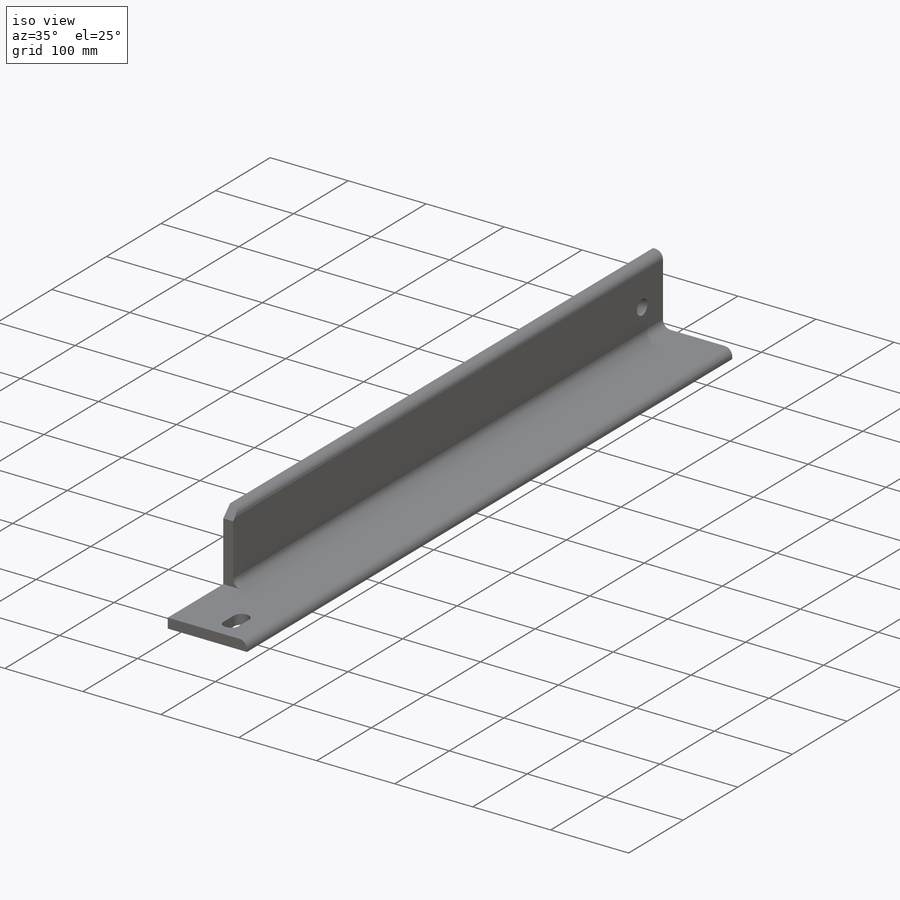
[diagram: iso view]
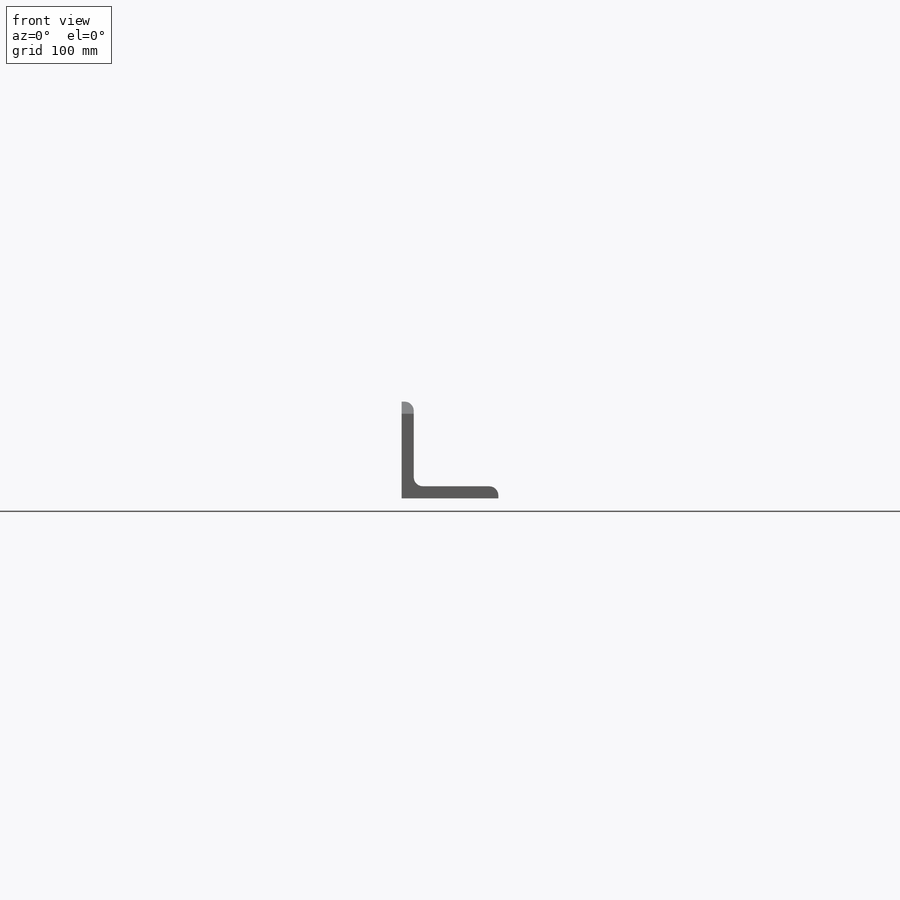
[diagram: front view]
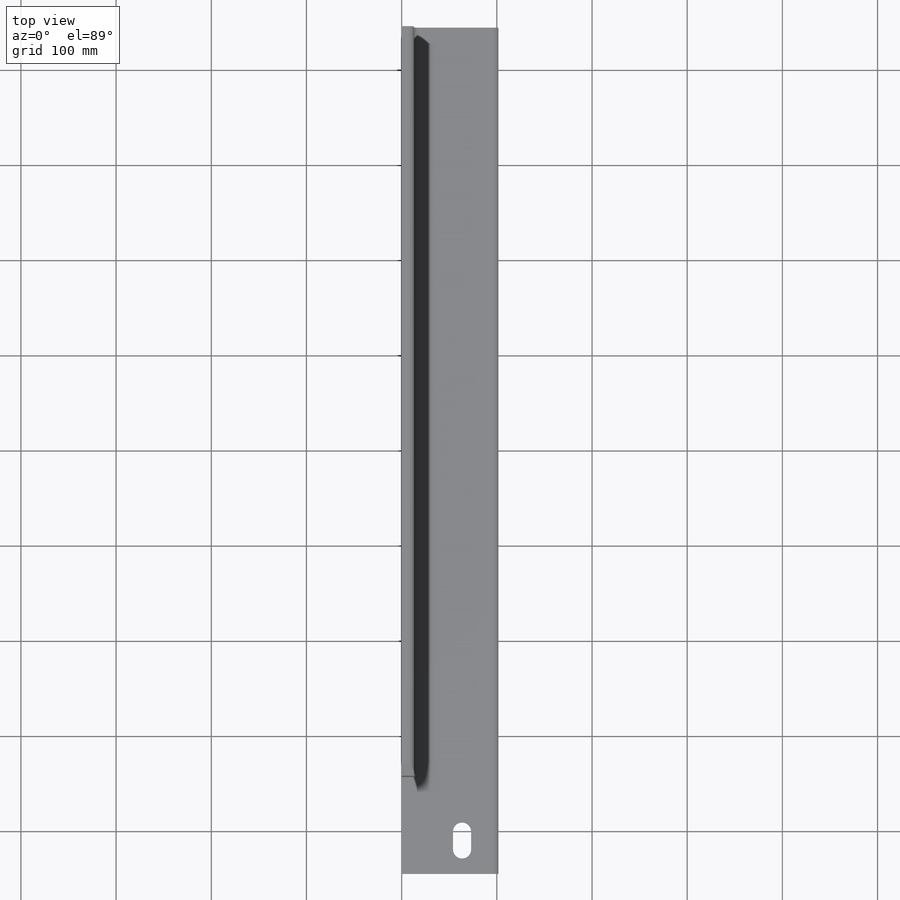
[diagram: top view]
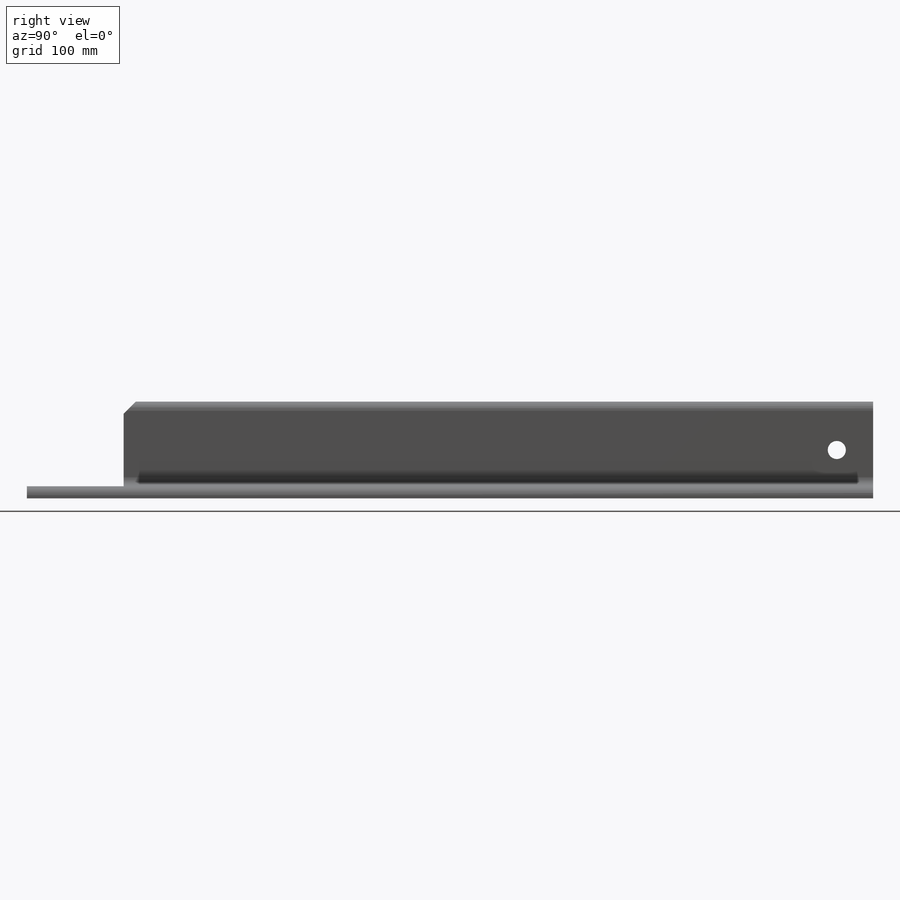
[diagram: right view]
SOLIDWORKS PART (.sldprt)
format: sldprt  version: not decoded by parser v0  size: 261,120 bytes
history: native  units: mm
features: sketch x5, cut_extrude x2, material x1, extrude x1, hole x1 (+11 scaffold rows collapsed)
feature tree (21):
  scaffold x11  (default folders/planes/origin — collapsed)
  material  "Material <not specified>"
  sketch  "Sketch1"  dims[c1.D2=3.175mm c1.Radius_1=9.525mm c1.Radius_2=9.525mm c1.V_leg=50.8mm c1.H_leg=50.8mm c1.Thickness=12.7mm c1.D1=12.7mm c1.D3=46.0375mm c2.V_leg=101.6mm c2.H_leg=101.6mm c2.Flat_wid=~3.18008mm c2.D3=6.35mm c2.D2=~3.18008mm]
  extrude  "Boss-Extrude1"  Depth=889mm
  sketch  "Sketch2"  dims[c1.D1=~30.703542mm c2.D1=115.0deg c2.D2=38.1mm c2.D3=101.6mm c3.D1=12.7mm c3.D2=12.7mm c3.D4=12.7mm]
  sketch  "Sketch3"  dims[c1.D1=9.525mm c1.D2=63.5mm c1.D3=19.05mm c1.D4=25.4mm c1.D5=~68.391593mm c1.D6=~68.391593mm c2.D4=25.4mm c2.D5=~68.391593mm c2.D6=90.0deg c3.D6=38.1mm c3.D7=38.1mm c3.D2=38.1mm]
  cut_extrude  "Cut-Extrude4"  [1 undecoded]
  cut_extrude  "Cut-Extrude2"  [1 undecoded]
  hole  "3/4 (0.75) Diameter Hole2"  Diameter=19.05mm Depth=12.7mm
  sketch  "Sketch7"  dims[D1=50.8mm D2=38.1mm]
  sketch  "Sketch6"  dims[hole-wizard template sketch: 60 standard entries collapsed; hole parameters kept: c18.Thru Hole Depth=12.7mm]
decode coverage: 7 of 9 modeling features carry decoded parameters
note: ~ marks probable driven/reference dimensions
note: 2 parameter values undecoded
note: suppression state not decoded; provenance and decode notes live in map.json
